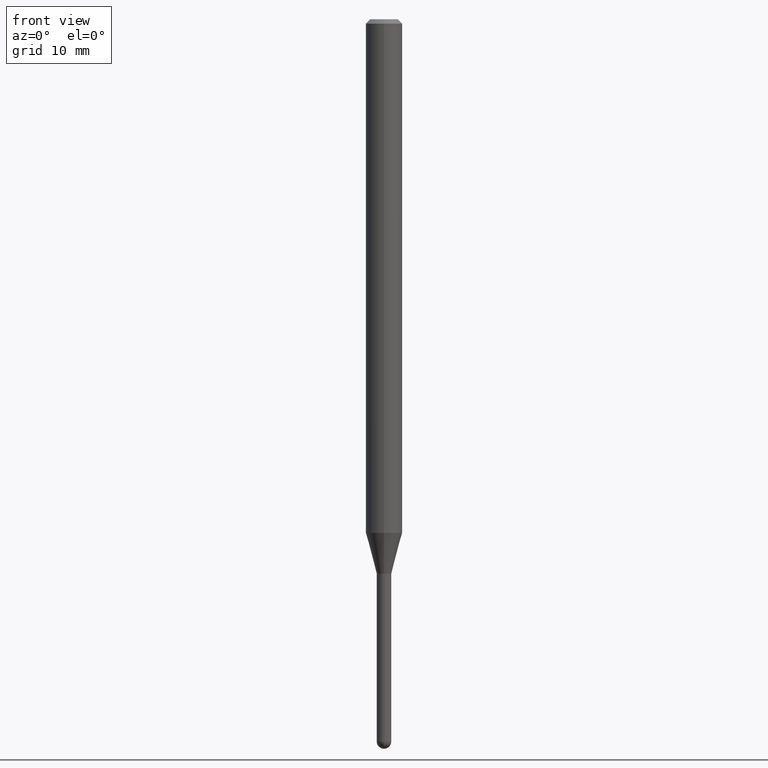
[diagram: clean part render]
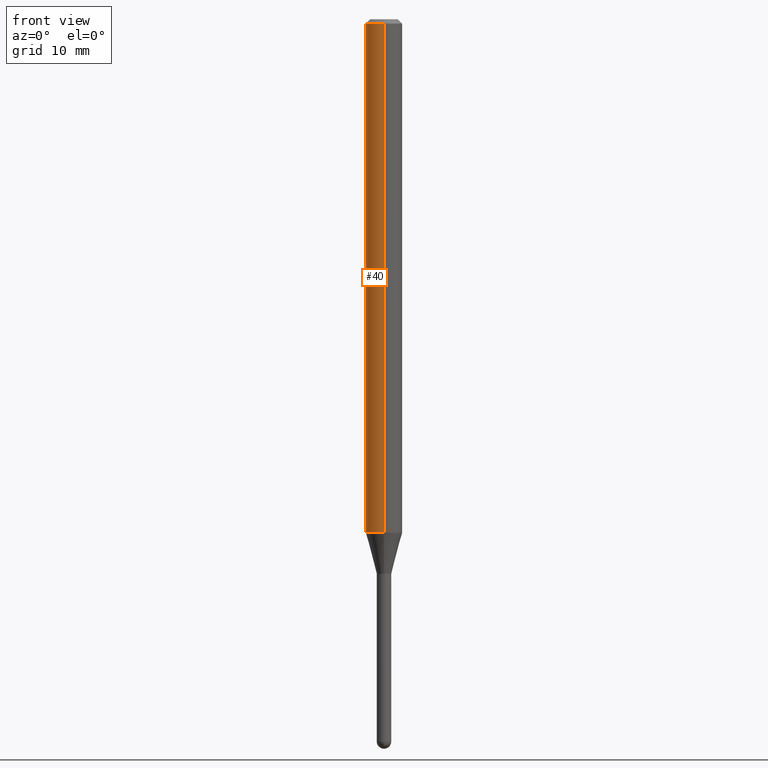
[diagram: same view with one face highlighted and labeled with its STEP entity id]
A machine part, front view. The second image highlights one B-rep face of the part: STEP entity #40.
In plain terms, the highlighted cylindrical surface (edge-blend (fillet) strip) has radius 1.5875 mm, axis along (-0, 0, 1).
Its self-contained STEP definition (entity closure, byte-faithful):
#12 = ORIENTED_EDGE ( 'NONE', *, *, #183, .T. ) ;
#13 = DIRECTION ( 'NONE',  ( -6.982962677686265922E-15, -1.000000000000000000, 3.483106191921935554E-15 ) ) ;
#26 = VERTEX_POINT ( 'NONE', #335 ) ;
#33 = CARTESIAN_POINT ( 'NONE',  ( 0.000000000000000000, 0.000000000000000000, 0.000000000000000000 ) ) ;
#40 = ADVANCED_FACE ( 'NONE', ( #388 ), #71, .T. ) ;
#42 = ORIENTED_EDGE ( 'NONE', *, *, #209, .F. ) ;
#69 = DIRECTION ( 'NONE',  ( -2.445445075219074648E-29, 3.491515322937228955E-15, 1.000000000000000000 ) ) ;
#71 = CYLINDRICAL_SURFACE ( 'NONE', #201, 0.06250000000000000000 ) ;
#124 = VERTEX_POINT ( 'NONE', #300 ) ;
#133 = LINE ( 'NONE', #477, #387 ) ;
#142 = CARTESIAN_POINT ( 'NONE',  ( 4.440892098501054119E-16, 0.06249999999999383826, -1.760048094716172074 ) ) ;
#143 = DIRECTION ( 'NONE',  ( -6.982962677686265922E-15, -1.000000000000000000, 3.491515322937228955E-15 ) ) ;
#152 = DIRECTION ( 'NONE',  ( -2.445445075219074648E-29, 3.491515322937228561E-15, 1.000000000000000000 ) ) ;
#161 = CARTESIAN_POINT ( 'NONE',  ( 4.440892098501060035E-16, 0.06249999999999995837, -0.01500000000000022669 ) ) ;
#172 = DIRECTION ( 'NONE',  ( -2.445445075219074648E-29, 3.491515322937228955E-15, 1.000000000000000000 ) ) ;
#181 = ORIENTED_EDGE ( 'NONE', *, *, #393, .T. ) ;
#183 = EDGE_CURVE ( 'NONE', #472, #124, #245, .T. ) ;
#198 = CARTESIAN_POINT ( 'NONE',  ( 4.440892098500625669E-16, 0.06250000000000000000, -2.182197076835768097E-16 ) ) ;
#201 = AXIS2_PLACEMENT_3D ( 'NONE', #33, #69, #143 ) ;
#209 = EDGE_CURVE ( 'NONE', #472, #231, #424, .T. ) ;
#224 = CIRCLE ( 'NONE', #273, 0.06250000000000000000 ) ;
#231 = VERTEX_POINT ( 'NONE', #161 ) ;
#245 = CIRCLE ( 'NONE', #353, 0.06250000000000000000 ) ;
#273 = AXIS2_PLACEMENT_3D ( 'NONE', #282, #172, #13 ) ;
#282 = CARTESIAN_POINT ( 'NONE',  ( 3.668167612828614459E-31, -5.237272984405846564E-17, -0.01500000000000000812 ) ) ;
#300 = CARTESIAN_POINT ( 'NONE',  ( -4.364351673553487258E-16, -0.06250000000000616174, -1.760048094716171407 ) ) ;
#335 = CARTESIAN_POINT ( 'NONE',  ( -4.364351673553912750E-16, -0.06250000000000005551, -0.01499999999999979128 ) ) ;
#343 = CARTESIAN_POINT ( 'NONE',  ( 4.304100945372378019E-29, -6.145234891807989298E-15, -1.760048094716171851 ) ) ;
#353 = AXIS2_PLACEMENT_3D ( 'NONE', #343, #458, #494 ) ;
#355 = EDGE_CURVE ( 'NONE', #231, #26, #224, .T. ) ;
#375 = VECTOR ( 'NONE', #152, 39.37007874015748143 ) ;
#387 = VECTOR ( 'NONE', #444, 39.37007874015748143 ) ;
#388 = FACE_OUTER_BOUND ( 'NONE', #443, .T. ) ;
#393 = EDGE_CURVE ( 'NONE', #124, #26, #133, .T. ) ;
#424 = LINE ( 'NONE', #198, #375 ) ;
#434 = ORIENTED_EDGE ( 'NONE', *, *, #355, .F. ) ;
#443 = EDGE_LOOP ( 'NONE', ( #42, #12, #181, #434 ) ) ;
#444 = DIRECTION ( 'NONE',  ( -2.445445075219074648E-29, 3.491515322937228561E-15, 1.000000000000000000 ) ) ;
#458 = DIRECTION ( 'NONE',  ( -2.445445075219074648E-29, 3.491515322937228955E-15, 1.000000000000000000 ) ) ;
#472 = VERTEX_POINT ( 'NONE', #142 ) ;
#477 = CARTESIAN_POINT ( 'NONE',  ( -4.364351673553916201E-16, -0.06250000000000000000, 2.182197076835768097E-16 ) ) ;
#494 = DIRECTION ( 'NONE',  ( -6.982962677686265922E-15, -1.000000000000000000, 4.370956789862821150E-15 ) ) ;